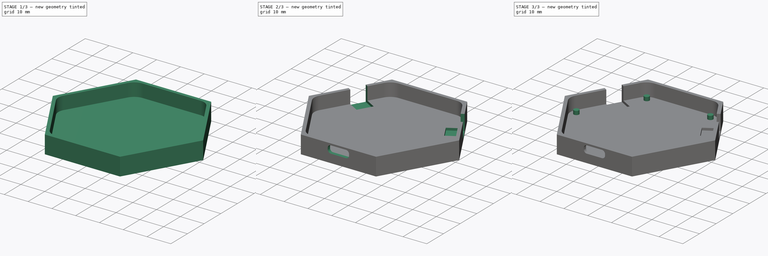
[diagram: build sequence overview — one tinted view per stage of 3, left to right]
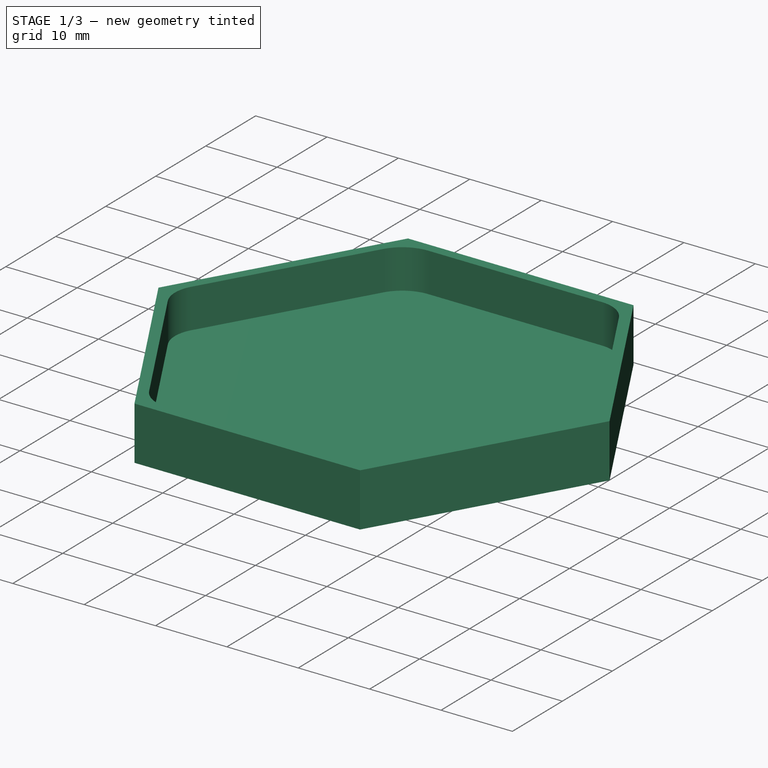
[diagram: stage 1 of 3 — iso view after this stage's code; geometry added in this stage tinted green]
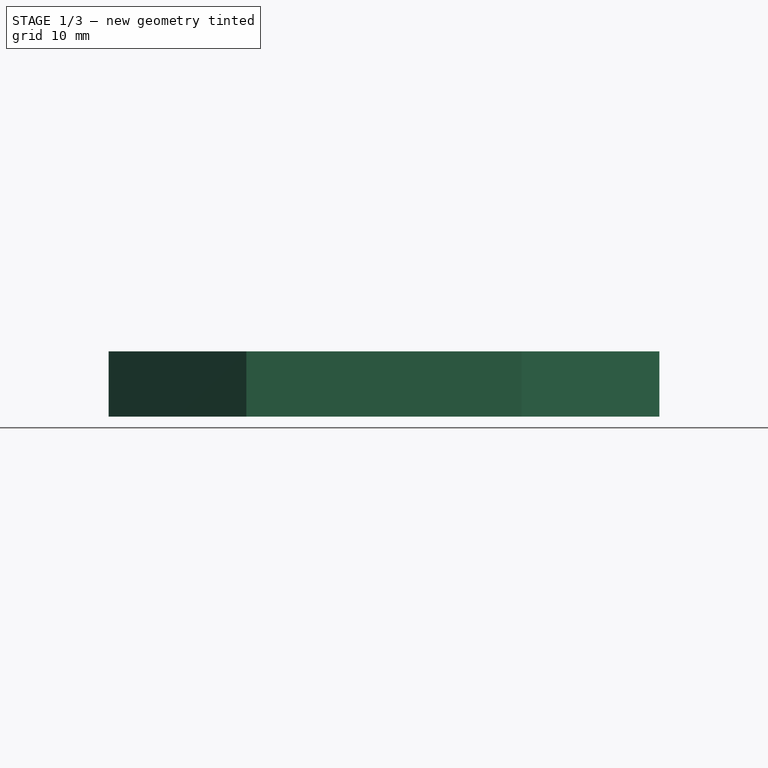
[diagram: stage 1 of 3 — front view after this stage's code; geometry added in this stage tinted green]
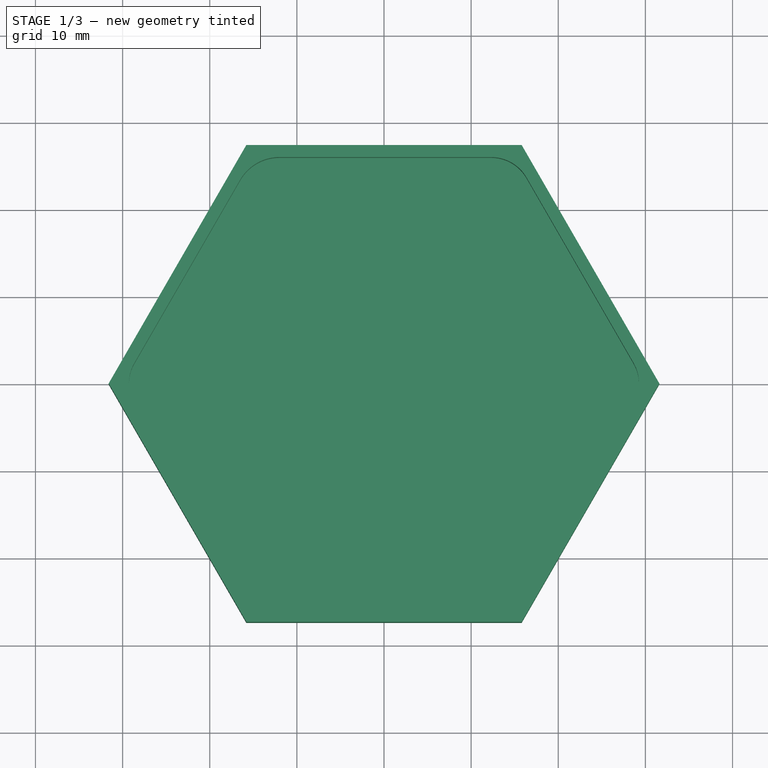
[diagram: stage 1 of 3 — top view after this stage's code; geometry added in this stage tinted green]
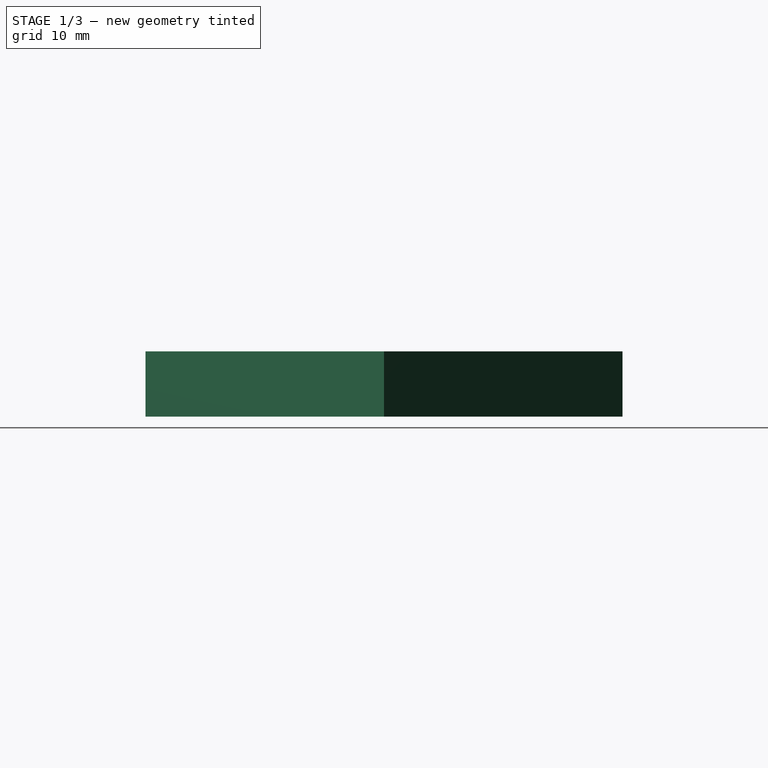
[diagram: stage 1 of 3 — right view after this stage's code; geometry added in this stage tinted green]
FCSTD DOCUMENT  (FreeCAD 1.0R39319 (Git))
Label: Bottom
License: All rights reserved
LicenseURL: http://en.wikipedia.org/wiki/All_rights_reserved
objects: Sketcher::SketchObject×5, PartDesign::Pad×3, PartDesign::Pocket×2, PartDesign::PolarPattern×1, PartDesign::Body×1
note: 28 computed .brp shape members not serialized (recipe doc carries the construction recipe); baked Part::Feature solids carry a one-line shape summary decoded from their .brp

FEATURE [Sketcher::SketchObject] Sketch
  ArcFitTolerance = 0
  AttachmentSupport = -> [XY_Plane]
  FullyConstrained = true
  MakeInternals = false
  MapMode = 5
  sketch-geometry (7):
    g0: LineSegment StartX=-31.6 StartY=0 StartZ=0 EndX=-15.8 EndY=-27.3664 EndZ=0
    g1: LineSegment StartX=-15.8 StartY=-27.3664 StartZ=0 EndX=15.8 EndY=-27.3664 EndZ=0
    g2: LineSegment StartX=15.8 StartY=-27.3664 StartZ=0 EndX=31.6 EndY=-6.5548e-12 EndZ=0
    g3: LineSegment StartX=31.6 StartY=-6.5533e-12 StartZ=0 EndX=15.8 EndY=27.3664 EndZ=0
    g4: LineSegment StartX=15.8 StartY=27.3664 StartZ=0 EndX=-15.8 EndY=27.3664 EndZ=0
    g5: LineSegment StartX=-15.8 StartY=27.3664 StartZ=0 EndX=-31.6 EndY=0 EndZ=0
    g6: Circle [constr] CenterX=-1e-16 CenterY=0 CenterZ=0 NormalX=0 NormalY=0 NormalZ=1 AngleXU=0 Radius=31.6
  constraints (16):
    c: Coincident(g0,g1)
    c: Coincident(g1,g2)
    c: Coincident(g2,g3)
    c: Coincident(g3,g4)
    c: Coincident(g4,g5)
    c: Coincident(g5,g0)
    c: Equal(g0, g1-g5) x5
    c: PointOnObject(g0,g6)
    c: PointOnObject(g1,g6)
    c: PointOnObject(g2,g6)
    c: PointOnObject(g3,g6)
    c: PointOnObject(g4,g6)
    c: PointOnObject(g5,g6)
    c: Coincident(g6,g-1)
    c: PointOnObject(g5,g-1)
    c: Radius(g6) = 31.6
FEATURE [PartDesign::Pad] Pad
  Direction = (0,0,1)
  Length = 2
  Length2 = 100
  Profile = -> Sketch
  Suppressed = false
  Type = 0
FEATURE [Sketcher::SketchObject] Sketch001
  ArcFitTolerance = 0
  AttachmentSupport = -> [Pad]
  ExternalGeometry = -> [Pad]
  FullyConstrained = false
  MakeInternals = false
  MapMode = 5
  Placement = pos=(0,0,2) rot=(0,0,1;0rad)
  sketch-geometry (26):
    g0: LineSegment StartX=-31.6 StartY=0 StartZ=0 EndX=-15.8 EndY=-27.3664 EndZ=0
    g1: LineSegment StartX=-15.8 StartY=-27.3664 StartZ=0 EndX=15.8 EndY=-27.3664 EndZ=0
    g2: LineSegment StartX=15.8 StartY=-27.3664 StartZ=0 EndX=31.6 EndY=0 EndZ=0
    g3: LineSegment StartX=31.6 StartY=0 StartZ=0 EndX=15.8 EndY=27.3664 EndZ=0
    g4: LineSegment StartX=15.8 StartY=27.3664 StartZ=0 EndX=-15.8 EndY=27.3664 EndZ=0
    g5: LineSegment StartX=-15.8 StartY=27.3664 StartZ=0 EndX=-31.6 EndY=0 EndZ=0
    g6: Circle [constr] CenterX=0 CenterY=0 CenterZ=0 NormalX=0 NormalY=0 NormalZ=1 AngleXU=0 Radius=31.6
    g7: LineSegment StartX=-28.65 StartY=-2.33827 StartZ=0 EndX=-16.365 EndY=-23.6165 EndZ=0
    g8: LineSegment StartX=-12.27 StartY=-25.9808 StartZ=0 EndX=12.273 EndY=-25.9808 EndZ=0
    g9: LineSegment StartX=16.3635 StartY=-23.6191 StartZ=0 EndX=28.6364 EndY=-2.36191 EndZ=0
    g10: LineSegment StartX=28.6364 StartY=2.36191 StartZ=0 EndX=16.35 EndY=23.6425 EndZ=0
    g11: LineSegment StartX=12.3 StartY=25.9808 StartZ=0 EndX=-12 EndY=25.9808 EndZ=0
    g12: LineSegment StartX=-16.5 StartY=23.3827 StartZ=0 EndX=-28.65 EndY=2.33827 EndZ=0
    g13: Circle [constr] CenterX=0 CenterY=0 CenterZ=0 NormalX=0 NormalY=0 NormalZ=1 AngleXU=0 Radius=30
    g14: ArcOfCircle CenterX=-12 CenterY=20.7846 CenterZ=0 NormalX=0 NormalY=0 NormalZ=1 AngleXU=0 Radius=5.19615 StartAngle=1.5708 EndAngle=2.61799
    g15: GeomPoint [constr] X=-15 Y=25.9808 Z=0
    g16: ArcOfCircle CenterX=-24.6 CenterY=2.6e-15 CenterZ=0 NormalX=0 NormalY=0 NormalZ=1 AngleXU=0 Radius=4.67654 StartAngle=2.61799 EndAngle=3.66519
    g17: GeomPoint [constr] X=-30 Y=0 Z=0
    g18: ArcOfCircle CenterX=-12.27 CenterY=-21.2523 CenterZ=0 NormalX=0 NormalY=0 NormalZ=1 AngleXU=0 Radius=4.7285 StartAngle=3.66519 EndAngle=4.71239
    g19: GeomPoint [constr] X=-15 Y=-25.9808 Z=0
    g20: ArcOfCircle CenterX=12.273 CenterY=-21.2575 CenterZ=0 NormalX=0 NormalY=0 NormalZ=1 AngleXU=0 Radius=4.7233 StartAngle=4.71239 EndAngle=5.75959
    g21: GeomPoint [constr] X=15 Y=-25.9808 Z=0
    g22: ArcOfCircle CenterX=24.5454 CenterY=3.7e-15 CenterZ=0 NormalX=0 NormalY=0 NormalZ=1 AngleXU=0 Radius=4.72382 StartAngle=5.75959 EndAngle=6.80678
    g23: GeomPoint [constr] X=30 Y=5.8e-15 Z=0
    g24: ArcOfCircle CenterX=12.3 CenterY=21.3042 CenterZ=0 NormalX=0 NormalY=0 NormalZ=1 AngleXU=0 Radius=4.67654 StartAngle=0.523599 EndAngle=1.5708
    g25: GeomPoint [constr] X=15 Y=25.9808 Z=0
  constraints (48):
    c: Coincident(g0,g1)
    c: Coincident(g1,g2)
    c: Coincident(g2,g3)
    c: Coincident(g3,g4)
    c: Coincident(g4,g5)
    c: Coincident(g5,g0)
    c: Equal(g0, g1-g5) x5
    c: PointOnObject(g0,g6)
    c: PointOnObject(g1,g6)
    c: PointOnObject(g2,g6)
    c: PointOnObject(g3,g6)
    c: PointOnObject(g4,g6)
    c: PointOnObject(g5,g6)
    c: Coincident(g6,g-1)
    c: Coincident(g5,g-4)
    c: PointOnObject(g19,g13)
    c: PointOnObject(g21,g13)
    c: PointOnObject(g23,g13)
    c: PointOnObject(g25,g13)
    c: PointOnObject(g15,g13)
    c: PointOnObject(g17,g13)
    c: Coincident(g13,g-1)
    c: PointOnObject(g17,g-1)
    c: Radius(g13) = 30
    c: PointOnObject(g15,g11)
    c: PointOnObject(g15,g12)
    c: Tangent(g11,g14) = -1.5708
    c: Tangent(g12,g14) = -1.5708
    c: PointOnObject(g17,g7)
    c: PointOnObject(g17,g12)
    c: Tangent(g7,g16) = -1.5708
    c: Tangent(g12,g16) = -1.5708
    c: PointOnObject(g19,g7)
    c: PointOnObject(g19,g8)
    c: Tangent(g7,g18) = -1.5708
    c: Tangent(g8,g18) = -1.5708
    c: PointOnObject(g21,g8)
    c: PointOnObject(g21,g9)
    c: Tangent(g8,g20) = -1.5708
    c: Tangent(g9,g20) = -1.5708
    c: PointOnObject(g23,g9)
    c: PointOnObject(g23,g10)
    c: Tangent(g9,g22) = -1.5708
    c: Tangent(g10,g22) = -1.5708
    c: PointOnObject(g25,g10)
    c: PointOnObject(g25,g11)
    c: Tangent(g10,g24) = -1.5708
    c: Tangent(g11,g24) = -1.5708
FEATURE [PartDesign::Pad] Pad001
  BaseFeature = -> Pad
  Direction = (0,0,1)
  Length = 5.5
  Length2 = 100
  Profile = -> Sketch001
  Suppressed = false
  Type = 0
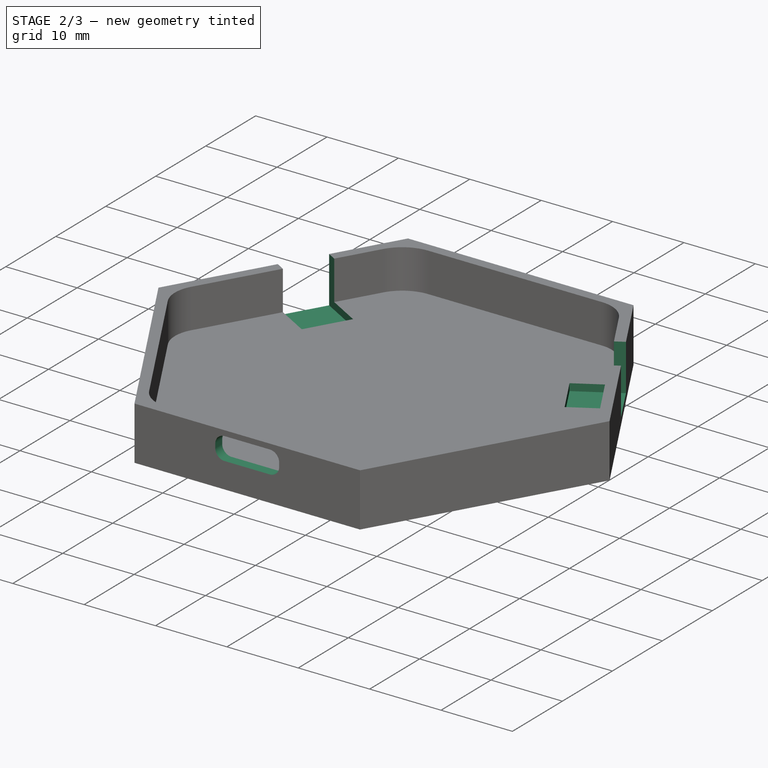
[diagram: stage 2 of 3 — iso view after this stage's code; geometry added in this stage tinted green]
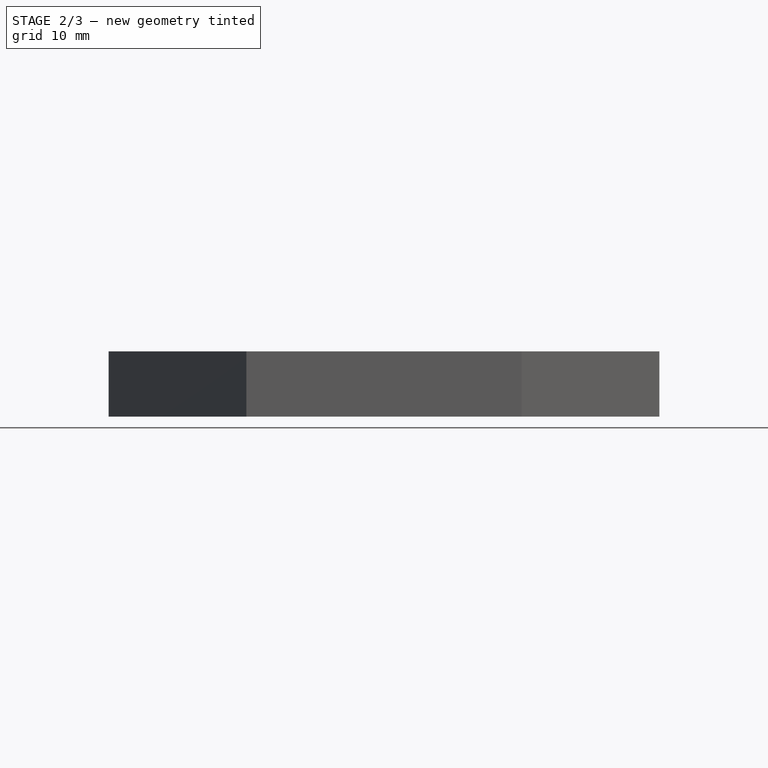
[diagram: stage 2 of 3 — front view after this stage's code; geometry added in this stage tinted green]
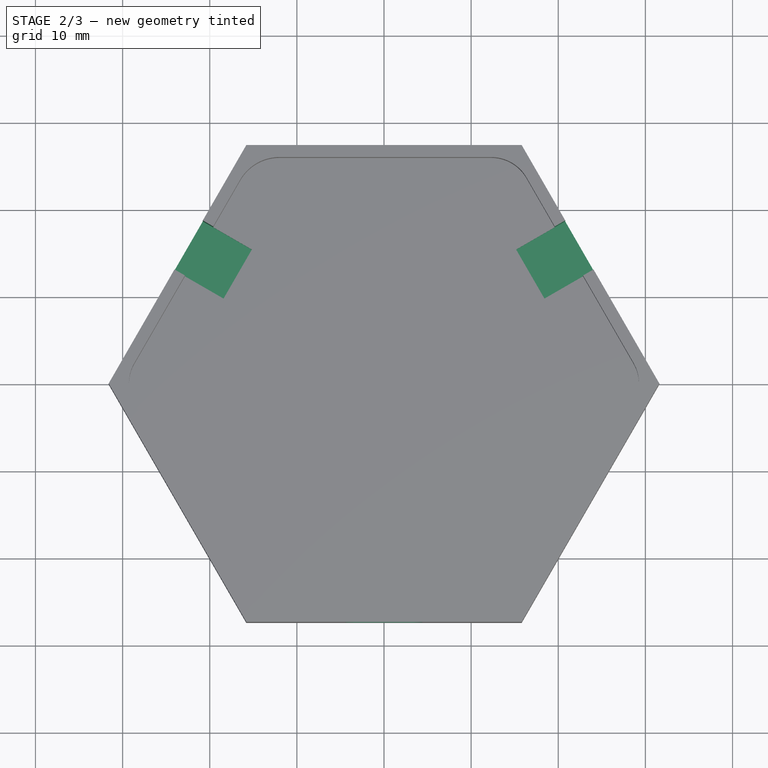
[diagram: stage 2 of 3 — top view after this stage's code; geometry added in this stage tinted green]
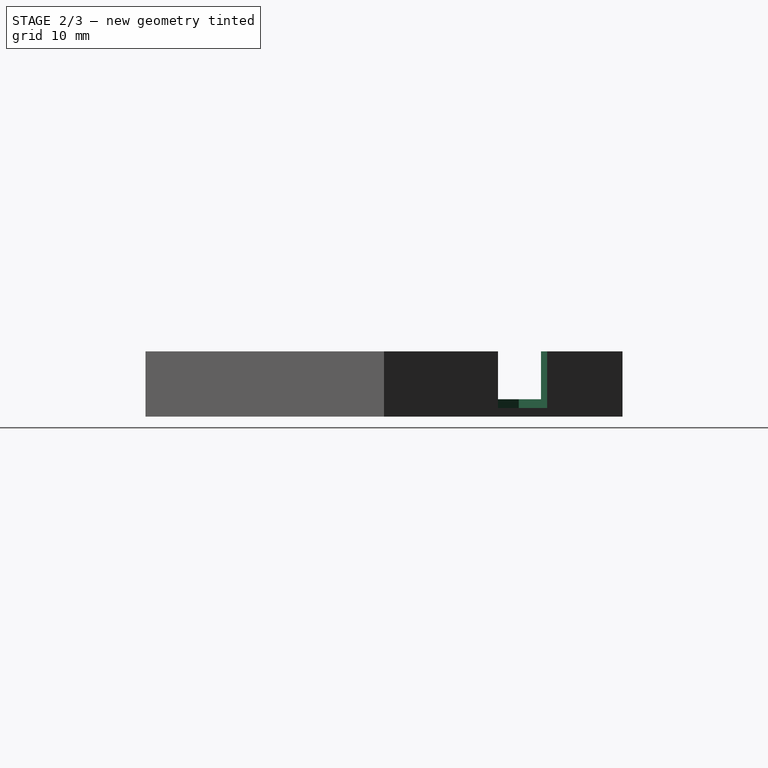
[diagram: stage 2 of 3 — right view after this stage's code; geometry added in this stage tinted green]
FEATURE [Sketcher::SketchObject] Sketch002
  ArcFitTolerance = 0
  AttachmentSupport = -> [Pad001]
  ExternalGeometry = -> [Pad001]
  FullyConstrained = true
  MakeInternals = false
  MapMode = 5
  Placement = pos=(0,0,7.5) rot=(0,0,1;0rad)
  sketch-geometry (8):
    g0: LineSegment StartX=-24.0441 StartY=13.0872 StartZ=0 EndX=-20.7941 EndY=18.7164 EndZ=0
    g1: LineSegment StartX=-20.7941 StartY=18.7164 StartZ=0 EndX=-15.1649 EndY=15.4664 EndZ=0
    g2: LineSegment StartX=-15.1649 StartY=15.4664 StartZ=0 EndX=-18.4149 EndY=9.83724 EndZ=0
    g3: LineSegment StartX=-18.4149 StartY=9.83724 StartZ=0 EndX=-24.0441 EndY=13.0872 EndZ=0
    g4: LineSegment StartX=20.7941 StartY=18.7164 StartZ=0 EndX=24.0441 EndY=13.0872 EndZ=0
    g5: LineSegment StartX=24.0441 StartY=13.0872 StartZ=0 EndX=18.4149 EndY=9.83724 EndZ=0
    g6: LineSegment StartX=18.4149 StartY=9.83724 StartZ=0 EndX=15.1649 EndY=15.4664 EndZ=0
    g7: LineSegment StartX=15.1649 StartY=15.4664 StartZ=0 EndX=20.7941 EndY=18.7164 EndZ=0
  constraints (24):
    c: PointOnObject(g0,g-3)
    c: PointOnObject(g0,g-3)
    c: Coincident(g1,g0)
    c: Coincident(g1,g2)
    c: Coincident(g2,g3)
    c: Coincident(g3,g0)
    c: PointOnObject(g4,g-5)
    c: PointOnObject(g4,g-5)
    c: Coincident(g4,g5)
    c: Coincident(g5,g6)
    c: Coincident(g6,g7)
    c: Coincident(g7,g4)
    c: Distance(g0) = 6.5
    c: Equal(g0,g3)
    c: Equal(g3,g2)
    c: Equal(g2,g1)
    c: Equal(g1,g7)
    c: Equal(g7,g6)
    c: Equal(g6,g5)
    c: Equal(g5,g4)
    c: Horizontal(g0,g4)
    c: Perpendicular(g1,g0)
    c: Perpendicular(g7,g4)
    c: DistanceY(g0,g-3) = 8.65
FEATURE [PartDesign::Pocket] Pocket
  BaseFeature = -> Pad001
  Direction = (0,0,-1)
  Length = 6.5
  Length2 = 100
  Profile = -> Sketch002
  Suppressed = false
  Type = 0
FEATURE [Sketcher::SketchObject] Sketch003
  ArcFitTolerance = 0
  AttachmentSupport = -> [Pocket]
  ExternalGeometry = -> [Pocket]
  FullyConstrained = true
  MakeInternals = false
  MapMode = 5
  Placement = pos=(0,-27.3664,0) rot=(1,0,0;1.5708rad)
  sketch-geometry (9):
    g0: LineSegment StartX=-3.175 StartY=6.76 StartZ=0 EndX=3.175 EndY=6.76 EndZ=0
    g1: ArcOfCircle CenterX=3.175 CenterY=5.46 CenterZ=0 NormalX=0 NormalY=0 NormalZ=1 AngleXU=0 Radius=1.3 StartAngle=5e-16 EndAngle=1.5708
    g2: LineSegment StartX=4.475 StartY=5.46 StartZ=0 EndX=4.475 EndY=4.9 EndZ=0
    g3: ArcOfCircle CenterX=3.175 CenterY=4.9 CenterZ=0 NormalX=0 NormalY=0 NormalZ=1 AngleXU=0 Radius=1.3 StartAngle=4.71239 EndAngle=6.28319
    g4: LineSegment StartX=3.175 StartY=3.6 StartZ=0 EndX=-3.175 EndY=3.6 EndZ=0
    g5: ArcOfCircle CenterX=-3.175 CenterY=4.9 CenterZ=0 NormalX=0 NormalY=0 NormalZ=1 AngleXU=0 Radius=1.3 StartAngle=3.14159 EndAngle=4.71239
    g6: ArcOfCircle CenterX=-3.175 CenterY=5.46 CenterZ=0 NormalX=0 NormalY=0 NormalZ=1 AngleXU=0 Radius=1.3 StartAngle=1.5708 EndAngle=3.14159
    g7: LineSegment StartX=-4.475 StartY=5.46 StartZ=0 EndX=-4.475 EndY=4.9 EndZ=0
    g8: LineSegment [constr] StartX=-3.175 StartY=3.6 StartZ=0 EndX=-3.175 EndY=2 EndZ=0
  constraints (30):
    c: Coincident(g1,g0)
    c: Coincident(g2,g1)
    c: Vertical(g2)
    c: Coincident(g3,g2)
    c: Coincident(g4,g3)
    c: Horizontal(g4)
    c: Coincident(g5,g4)
    c: Coincident(g6,g0)
    c: Coincident(g7,g6)
    c: Coincident(g7,g5)
    c: Vertical(g7)
    c: Distance(g0) = 6.35
    c: Equal(g4,g0)
    c: Distance(g7) = 0.56
    c: Equal(g7,g2)
    c: DistanceY(g6,g0) = 1.3
    c: DistanceX(g6,g0) = 1.3
    c: Horizontal(g6,g6)
    c: DistanceY(g4,g5) = 1.3
    c: Vertical(g4,g5)
    c: Vertical(g5,g6)
    c: Vertical(g3,g3)
    c: Vertical(g3,g1)
    c: DistanceX(g0,g1) = 1.3
    c: DistanceY(g1,g0) = 1.3
    c: Symmetric(g0,g0,g-2)
    c: Coincident(g8,g4)
    c: PointOnObject(g8,g-3)
    c: Vertical(g8)
    c: Distance(g8) = 1.6
FEATURE [PartDesign::Pocket] Pocket001
  BaseFeature = -> Pocket
  Direction = (0,1,-2e-16)
  Length = 5
  Length2 = 100
  Profile = -> Sketch003
  Suppressed = false
  Type = 0
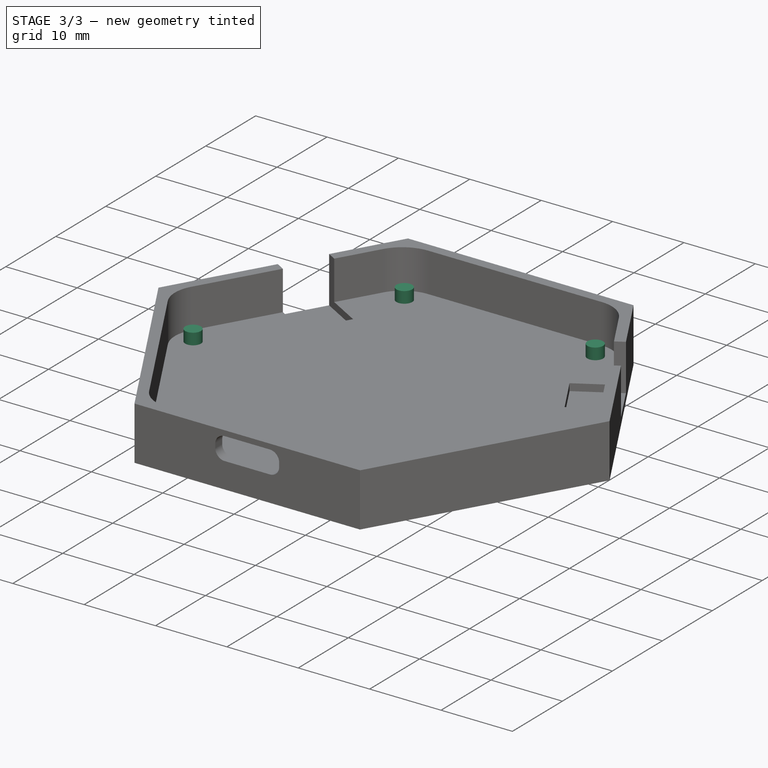
[diagram: stage 3 of 3 — iso view after this stage's code; geometry added in this stage tinted green]
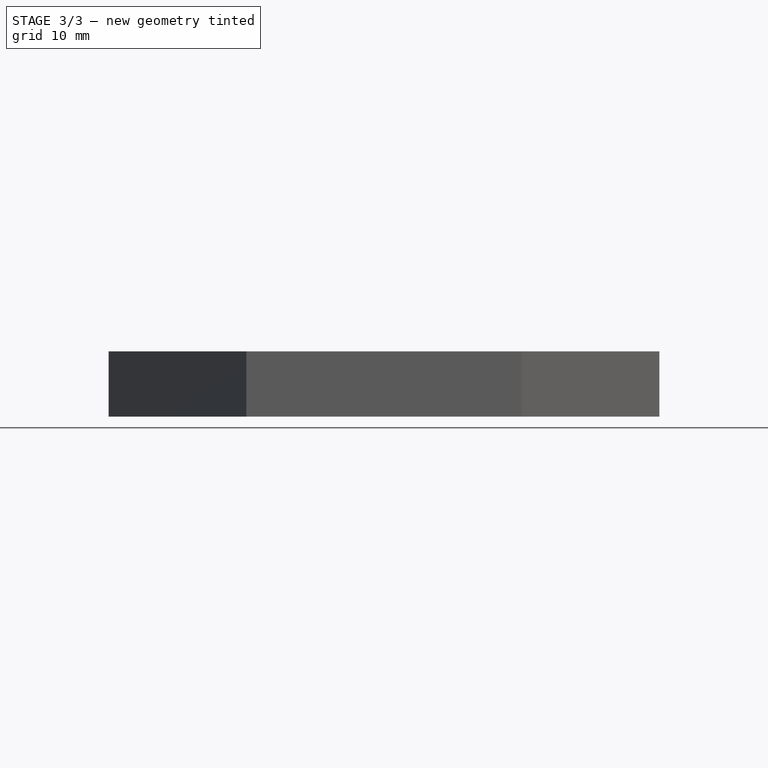
[diagram: stage 3 of 3 — front view after this stage's code; geometry added in this stage tinted green]
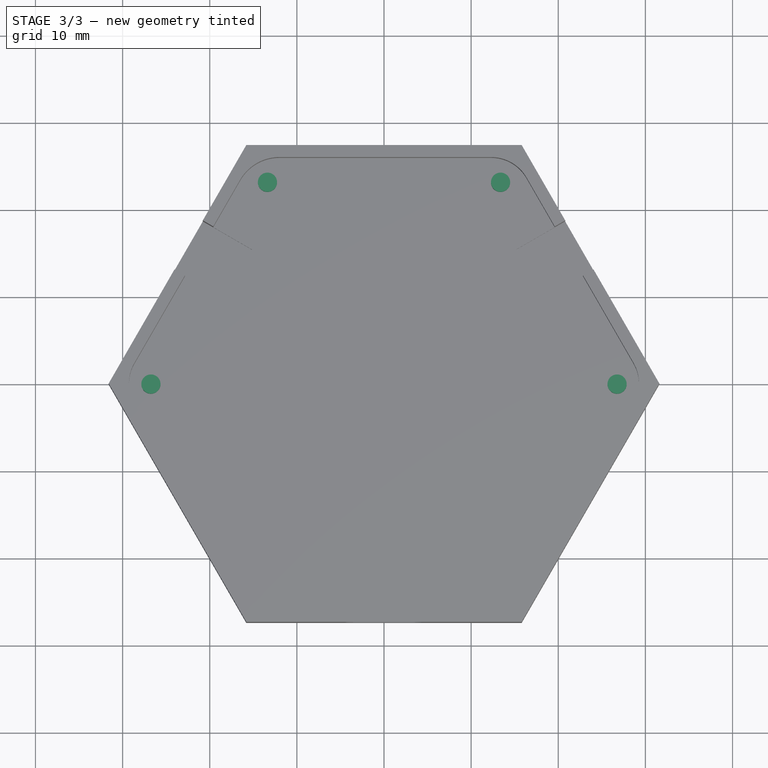
[diagram: stage 3 of 3 — top view after this stage's code; geometry added in this stage tinted green]
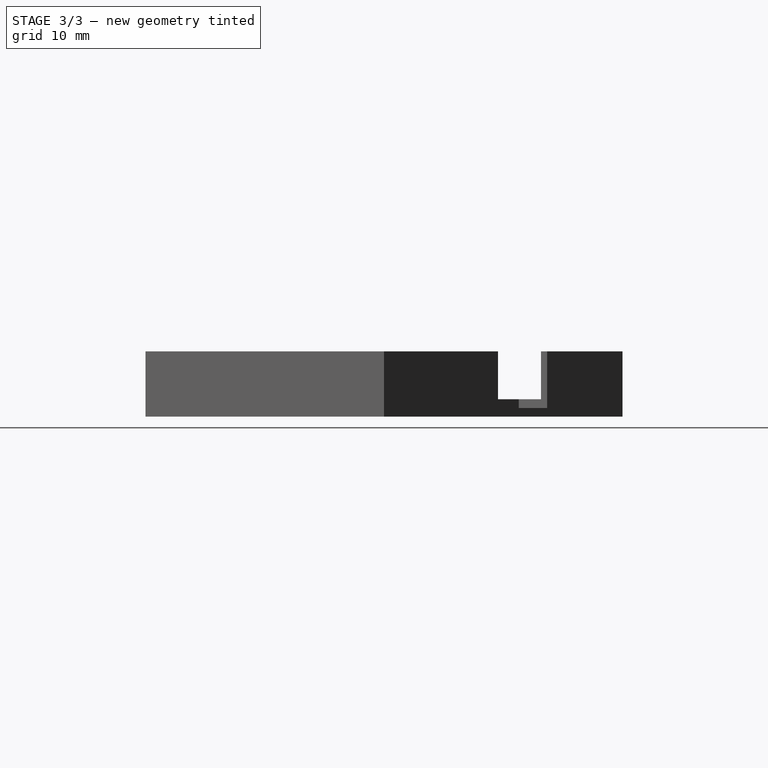
[diagram: stage 3 of 3 — right view after this stage's code; geometry added in this stage tinted green]
FEATURE [Sketcher::SketchObject] Sketch004
  ArcFitTolerance = 0
  AttachmentSupport = -> [Pocket001]
  ExternalGeometry = -> [Pocket001]
  FullyConstrained = true
  MakeInternals = false
  MapMode = 5
  Placement = pos=(0,0,2) rot=(0,0,1;0rad)
  sketch-geometry (1):
    g0: Circle CenterX=-26.75 CenterY=0 CenterZ=0 NormalX=0 NormalY=0 NormalZ=1 AngleXU=0 Radius=1.1
  constraints (3):
    c: PointOnObject(g0,g-1)
    c: Diameter(g0) = 2.2
    c: DistanceX(g0,g-1) = 26.75
FEATURE [PartDesign::Pad] Pad002
  BaseFeature = -> Pocket001
  Direction = (0,0,1)
  Length = 1.6
  Length2 = 100
  Profile = -> Sketch004
  Suppressed = false
  Type = 0
FEATURE [PartDesign::PolarPattern] PolarPattern
  Angle = 180
  Axis = -> Sketch004 [N_Axis]
  BaseFeature = -> Pad002
  Mode = 0
  Occurrences = 4
  Offset = 120
  Originals = -> [Pad002]
  Reversed = true
  Suppressed = false
  TransformMode = 0
FEATURE [PartDesign::Body] Body
  AllowCompound = false
  Group = -> [Sketch,Pad,Sketch001,Pad001,Sketch002,Pocket,Sketch003,Pocket001,Sketch004,Pad002,PolarPattern]
  Origin = -> Origin
  Tip = -> PolarPattern
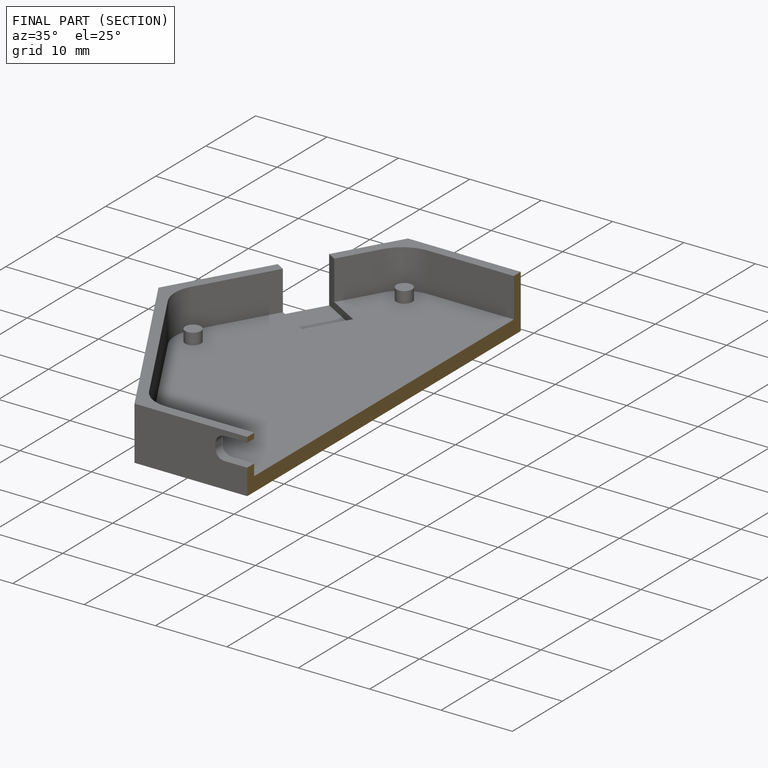
[diagram: finished part — half-section view (interior)]
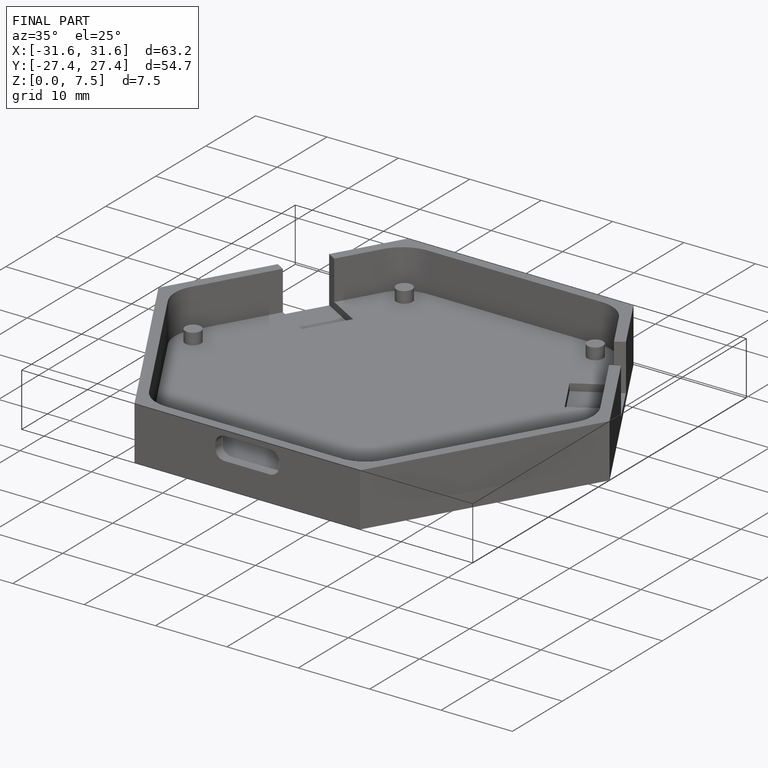
[diagram: finished part — iso view with bounding-box wireframe]
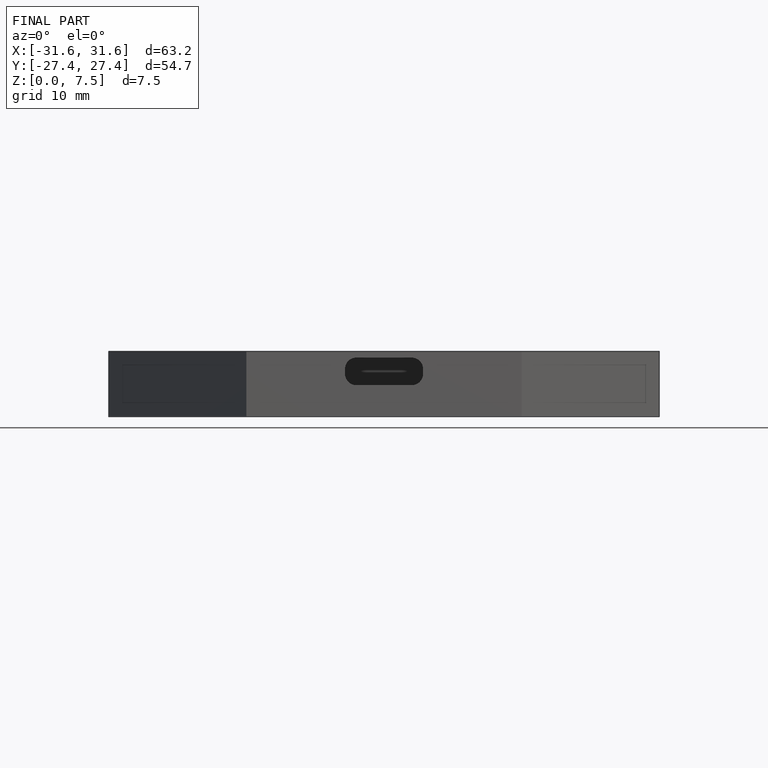
[diagram: finished part — front view with bounding-box wireframe]
